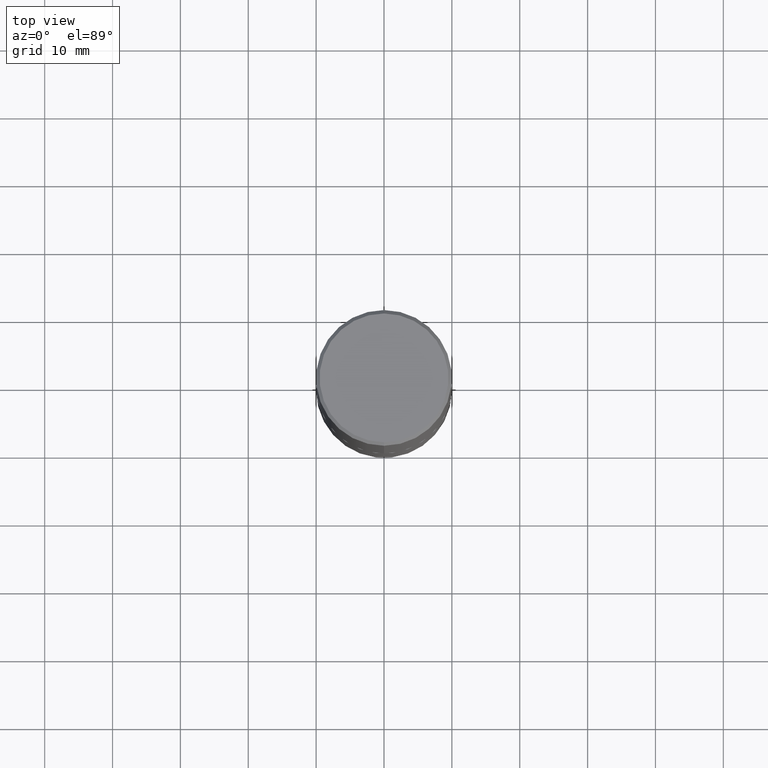
[diagram: clean part render]
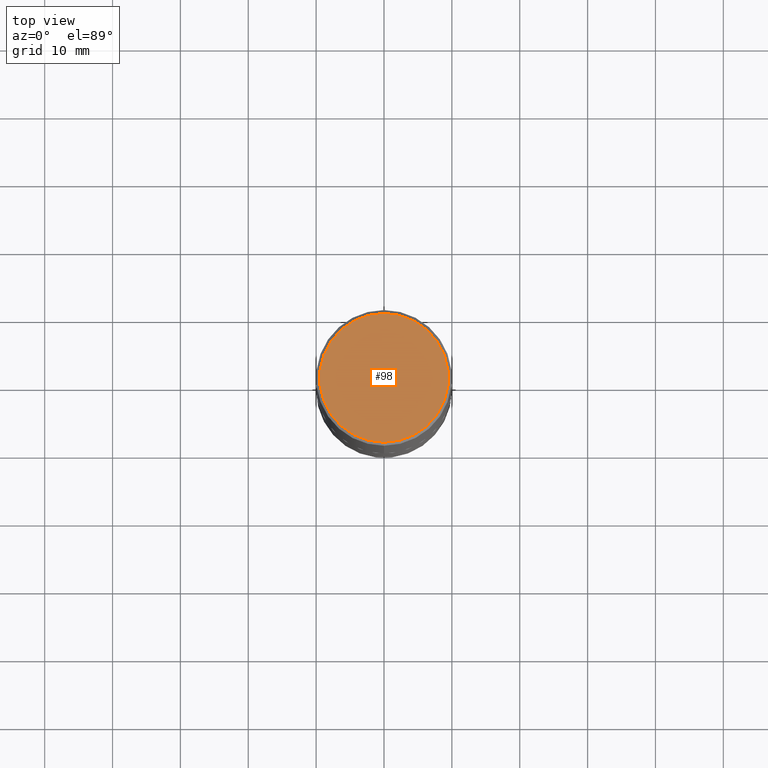
[diagram: same view with one face highlighted and labeled with its STEP entity id]
A machine part, top view. The second image highlights one B-rep face of the part: STEP entity #98.
In plain terms, the highlighted planar face has unit normal (0, -0, -1).
Its self-contained STEP definition (entity closure, byte-faithful):
#3 = CARTESIAN_POINT ( 'NONE',  ( -2.632373081744935132E-15, -0.3736999999999997546, 1.514362516461610517E-15 ) ) ;
#28 = DIRECTION ( 'NONE',  ( -6.982962677686265922E-15, -1.000000000000000000, 3.492068478421695064E-15 ) ) ;
#62 = ORIENTED_EDGE ( 'NONE', *, *, #190, .T. ) ;
#69 = CARTESIAN_POINT ( 'NONE',  ( -5.119379194384959481E-45, 7.311571668294261102E-31, 2.093765260754239936E-16 ) ) ;
#92 = VERTEX_POINT ( 'NONE', #341 ) ;
#98 = ADVANCED_FACE ( 'NONE', ( #411 ), #119, .F. ) ;
#116 = DIRECTION ( 'NONE',  ( 6.982962677686265922E-15, 1.000000000000000000, -3.492068478421695064E-15 ) ) ;
#119 = PLANE ( 'NONE',  #178 ) ;
#120 = EDGE_CURVE ( 'NONE', #92, #376, #280, .T. ) ;
#121 = DIRECTION ( 'NONE',  ( -6.982962677686265922E-15, -1.000000000000000000, 3.492068478421695064E-15 ) ) ;
#162 = DIRECTION ( 'NONE',  ( -2.445058808808776392E-29, 3.492068478421694670E-15, 1.000000000000000000 ) ) ;
#178 = AXIS2_PLACEMENT_3D ( 'NONE', #406, #372, #116 ) ;
#180 = DIRECTION ( 'NONE',  ( -2.445058808808776392E-29, 3.492068478421694670E-15, 1.000000000000000000 ) ) ;
#190 = EDGE_CURVE ( 'NONE', #376, #92, #307, .T. ) ;
#197 = EDGE_LOOP ( 'NONE', ( #358, #62 ) ) ;
#280 = CIRCLE ( 'NONE', #361, 0.3736999999999997546 ) ;
#307 = CIRCLE ( 'NONE', #390, 0.3736999999999997546 ) ;
#308 = CARTESIAN_POINT ( 'NONE',  ( -5.119379194384959481E-45, 7.311571668294261102E-31, 2.093765260754239936E-16 ) ) ;
#341 = CARTESIAN_POINT ( 'NONE',  ( 2.679362779428219524E-15, 0.3736999999999997546, -1.095609464310762333E-15 ) ) ;
#358 = ORIENTED_EDGE ( 'NONE', *, *, #120, .T. ) ;
#361 = AXIS2_PLACEMENT_3D ( 'NONE', #308, #180, #28 ) ;
#372 = DIRECTION ( 'NONE',  ( 2.445058808808775831E-29, -3.492068478421695064E-15, -1.000000000000000000 ) ) ;
#376 = VERTEX_POINT ( 'NONE', #3 ) ;
#390 = AXIS2_PLACEMENT_3D ( 'NONE', #69, #162, #121 ) ;
#406 = CARTESIAN_POINT ( 'NONE',  ( 2.609533152651355831E-15, 0.3736999999999997546, -1.200297727348474625E-15 ) ) ;
#411 = FACE_OUTER_BOUND ( 'NONE', #197, .T. ) ;